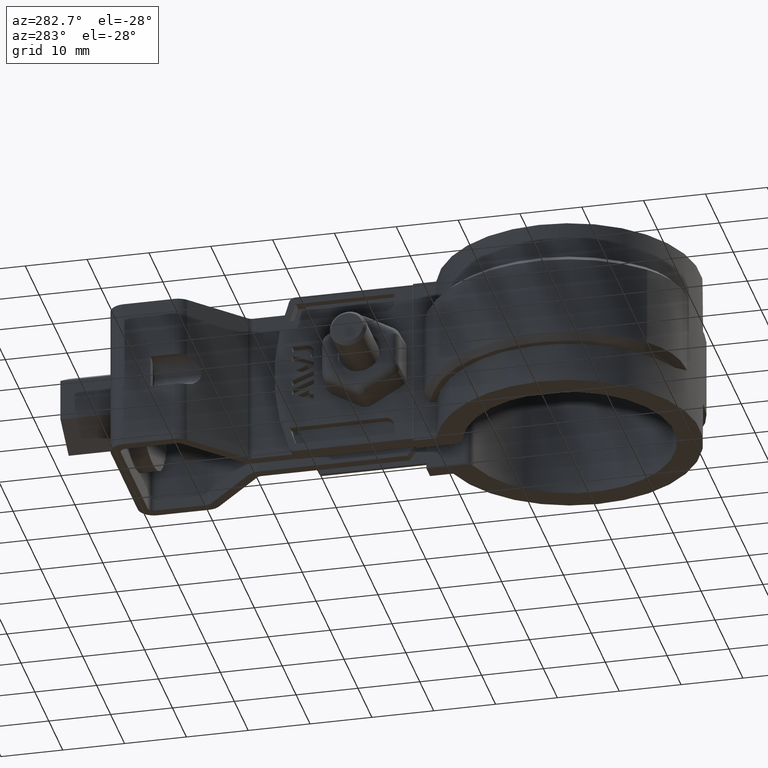
[diagram: clean part render]
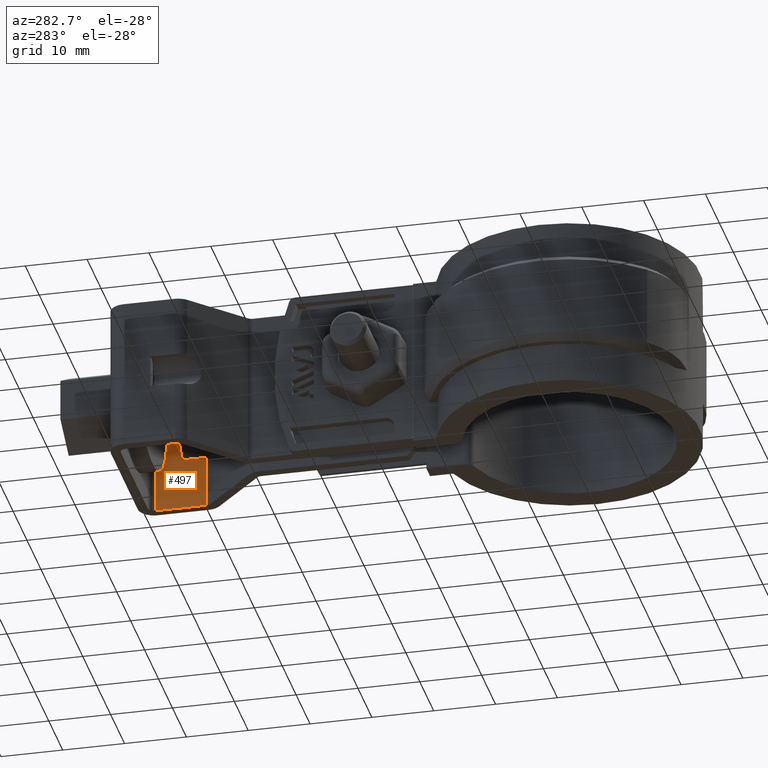
[diagram: same view with one face highlighted and labeled with its STEP entity id]
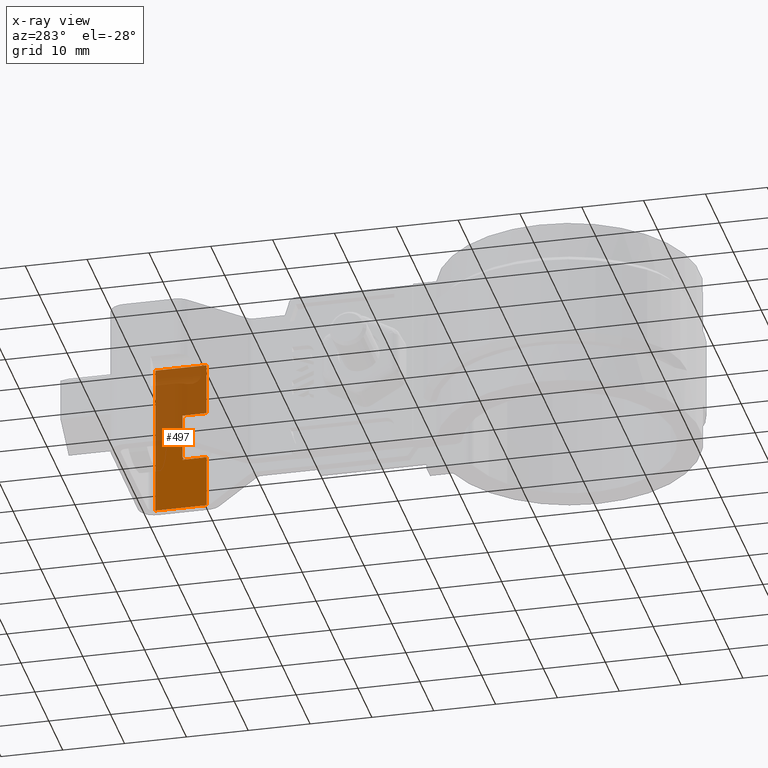
[diagram: x-ray of the same camera — body ghosted, the highlighted face saturated]
A machine part, auxiliary view. The second image highlights one B-rep face of the part: STEP entity #497.
The next image is the same camera in x-ray: the body ghosted, the highlighted face saturated — about 52% of this face is hidden behind the body in this view.
In plain terms, the highlighted planar face has unit normal (-1, 0, 0).
Its self-contained STEP definition (entity closure, byte-faithful):
#497 = ADVANCED_FACE( '', ( #972 ), #973, .T. );
#972 = FACE_OUTER_BOUND( '', #2065, .T. );
#973 = PLANE( '', #2066 );
#2065 = EDGE_LOOP( '', ( #4496, #4497, #4498, #4499, #4500, #4501, #4502, #4503, #4504, #4505 ) );
#2066 = AXIS2_PLACEMENT_3D( '', #4506, #4507, #4508 );
#4496 = ORIENTED_EDGE( '', *, *, #6524, .T. );
#4497 = ORIENTED_EDGE( '', *, *, #6526, .T. );
#4498 = ORIENTED_EDGE( '', *, *, #6528, .T. );
#4499 = ORIENTED_EDGE( '', *, *, #6525, .T. );
#4500 = ORIENTED_EDGE( '', *, *, #6522, .T. );
#4501 = ORIENTED_EDGE( '', *, *, #6540, .F. );
#4502 = ORIENTED_EDGE( '', *, *, #6482, .F. );
#4503 = ORIENTED_EDGE( '', *, *, #6541, .T. );
#4504 = ORIENTED_EDGE( '', *, *, #6542, .T. );
#4505 = ORIENTED_EDGE( '', *, *, #6534, .F. );
#4506 = CARTESIAN_POINT( '', ( 10.6500009160616, 69.4043597177956, 2.29445754063029E-006 ) );
#4507 = DIRECTION( '', ( -1.00000000000000, 6.88262011548297E-009, 4.22881814054228E-010 ) );
#4508 = DIRECTION( '', ( 6.88262012252392E-009, 1.00000000000000, 1.66499459745878E-008 ) );
#6482 = EDGE_CURVE( '', #7648, #7650, #7651, .T. );
#6522 = EDGE_CURVE( '', #7727, #7725, #7728, .F. );
#6524 = EDGE_CURVE( '', #7721, #7729, #7731, .T. );
#6525 = EDGE_CURVE( '', #7713, #7727, #7732, .T. );
#6526 = EDGE_CURVE( '', #7729, #7711, #7733, .T. );
#6528 = EDGE_CURVE( '', #7711, #7713, #7735, .T. );
#6534 = EDGE_CURVE( '', #7721, #7743, #7744, .T. );
#6540 = EDGE_CURVE( '', #7650, #7725, #7752, .T. );
#6541 = EDGE_CURVE( '', #7648, #7753, #7754, .T. );
#6542 = EDGE_CURVE( '', #7753, #7743, #7755, .T. );
#7648 = VERTEX_POINT( '', #10864 );
#7650 = VERTEX_POINT( '', #10866 );
#7651 = LINE( '', #10867, #10868 );
#7711 = VERTEX_POINT( '', #10954 );
#7713 = VERTEX_POINT( '', #10956 );
#7721 = VERTEX_POINT( '', #10972 );
#7725 = VERTEX_POINT( '', #10981 );
#7727 = VERTEX_POINT( '', #10988 );
#7728 = LINE( '', #10989, #10990 );
#7729 = VERTEX_POINT( '', #10991 );
#7731 = LINE( '', #10993, #10994 );
#7732 = LINE( '', #10995, #10996 );
#7733 = LINE( '', #10997, #10998 );
#7735 = LINE( '', #11001, #11002 );
#7743 = VERTEX_POINT( '', #11015 );
#7744 = LINE( '', #11016, #11017 );
#7752 = LINE( '', #11029, #11030 );
#7753 = VERTEX_POINT( '', #11031 );
#7754 = LINE( '', #11032, #11033 );
#7755 = LINE( '', #11034, #11035 );
#10864 = CARTESIAN_POINT( '', ( 10.6500009160616, 69.4043597177956, 2.29445754063029E-006 ) );
#10866 = CARTESIAN_POINT( '', ( 10.6500008589070, 61.1001654866856, 2.15619315457882E-006 ) );
#10867 = CARTESIAN_POINT( '', ( 10.6500009160616, 69.4043597177956, 2.29445754063029E-006 ) );
#10868 = VECTOR( '', #12763, 1000.00000000000 );
#10954 = CARTESIAN_POINT( '', ( 10.6500008795988, 65.0043599610920, -14.6124607962300 ) );
#10956 = CARTESIAN_POINT( '', ( 10.6500008813854, 65.0043598907473, -10.3875347613745 ) );
#10972 = CARTESIAN_POINT( '', ( 10.6500008519560, 61.1001657603661, -16.4373192683288 ) );
#10981 = CARTESIAN_POINT( '', ( 10.6500008552860, 61.1001656292538, -8.56267641928485 ) );
#10988 = CARTESIAN_POINT( '', ( 10.6500008821571, 65.0043598603635, -8.56267635428024 ) );
#10989 = CARTESIAN_POINT( '', ( 10.6500007789178, 50.0043598603637, -8.56267660402941 ) );
#10990 = VECTOR( '', #12833, 1000.00000000000 );
#10991 = CARTESIAN_POINT( '', ( 10.6500008788271, 65.0043599914758, -16.4373192033242 ) );
#10993 = CARTESIAN_POINT( '', ( 10.6500007755878, 50.0043599914760, -16.4373194530734 ) );
#10994 = VECTOR( '', #12837, 1000.00000000000 );
#10995 = CARTESIAN_POINT( '', ( 10.6500008857781, 65.0043597177956, 2.22119778126029E-006 ) );
#10996 = VECTOR( '', #12838, 1000.00000000000 );
#10997 = CARTESIAN_POINT( '', ( 10.6500008857781, 65.0043597177956, 2.22119778126029E-006 ) );
#10998 = VECTOR( '', #12839, 1000.00000000000 );
#11001 = CARTESIAN_POINT( '', ( 10.6500008857781, 65.0043597177956, 2.22119778126029E-006 ) );
#11002 = VECTOR( '', #12841, 1000.00000000000 );
#11015 = CARTESIAN_POINT( '', ( 10.6500008483350, 61.1001659029342, -24.9999978438068 ) );
#11016 = CARTESIAN_POINT( '', ( 10.6500008589070, 61.1001654866856, 2.15619315457882E-006 ) );
#11017 = VECTOR( '', #12847, 1000.00000000000 );
#11029 = CARTESIAN_POINT( '', ( 10.6500008589070, 61.1001654866856, 2.15619315457882E-006 ) );
#11030 = VECTOR( '', #12855, 1000.00000000000 );
#11031 = CARTESIAN_POINT( '', ( 10.6500009054896, 69.4043601340442, -24.9999977055425 ) );
#11032 = CARTESIAN_POINT( '', ( 10.6500009160616, 69.4043597177956, 2.29445754063029E-006 ) );
#11033 = VECTOR( '', #12856, 1000.00000000000 );
#11034 = CARTESIAN_POINT( '', ( 10.6500009054896, 69.4043601340442, -24.9999977055425 ) );
#11035 = VECTOR( '', #12857, 1000.00000000000 );
#12763 = DIRECTION( '', ( -6.88262012252392E-009, -1.00000000000000, -1.66499459745878E-008 ) );
#12833 = DIRECTION( '', ( 6.88262012252392E-009, 1.00000000000000, 1.66499459745878E-008 ) );
#12837 = DIRECTION( '', ( 6.88262012252392E-009, 1.00000000000000, 1.66499459745878E-008 ) );
#12838 = DIRECTION( '', ( 4.22881699458974E-010, -1.66499459774983E-008, 1.00000000000000 ) );
#12839 = DIRECTION( '', ( 4.22881699458974E-010, -1.66499459774983E-008, 1.00000000000000 ) );
#12841 = DIRECTION( '', ( 4.22881699458974E-010, -1.66499459774983E-008, 1.00000000000000 ) );
#12847 = DIRECTION( '', ( -4.22881699458974E-010, 1.66499459774983E-008, -1.00000000000000 ) );
#12855 = DIRECTION( '', ( -4.22881699458974E-010, 1.66499459774983E-008, -1.00000000000000 ) );
#12856 = DIRECTION( '', ( -4.22881699458974E-010, 1.66499459774983E-008, -1.00000000000000 ) );
#12857 = DIRECTION( '', ( -6.88262012252392E-009, -1.00000000000000, -1.66499459745878E-008 ) );